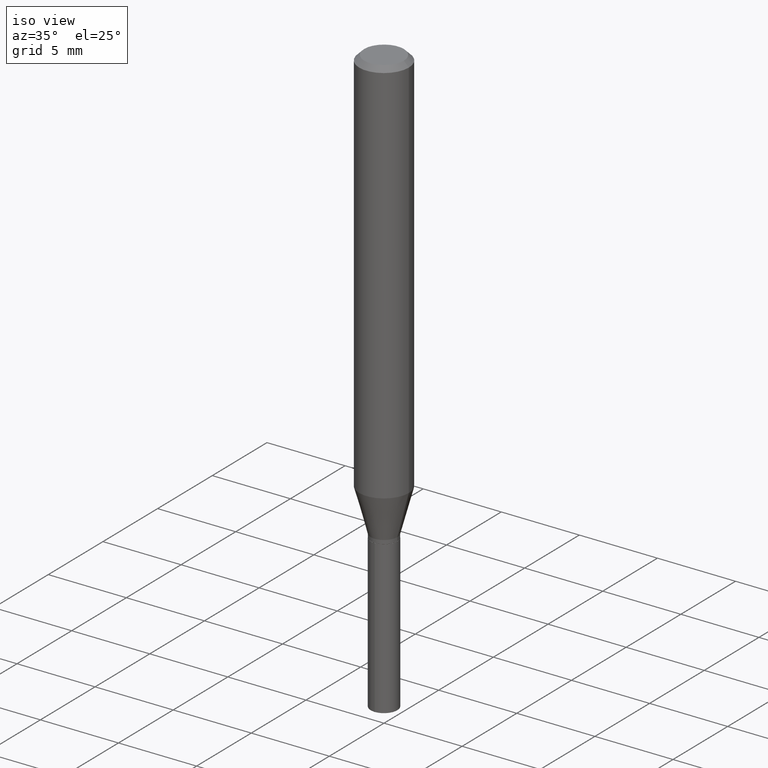
[diagram: clean part render]
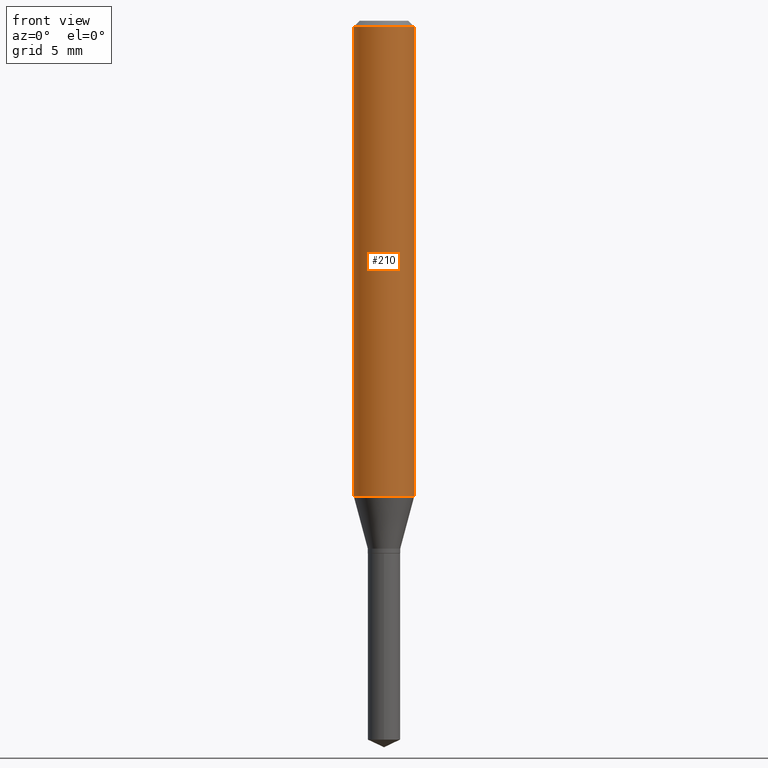
[diagram: tour spotlight — one face highlighted and labeled with its STEP entity id]
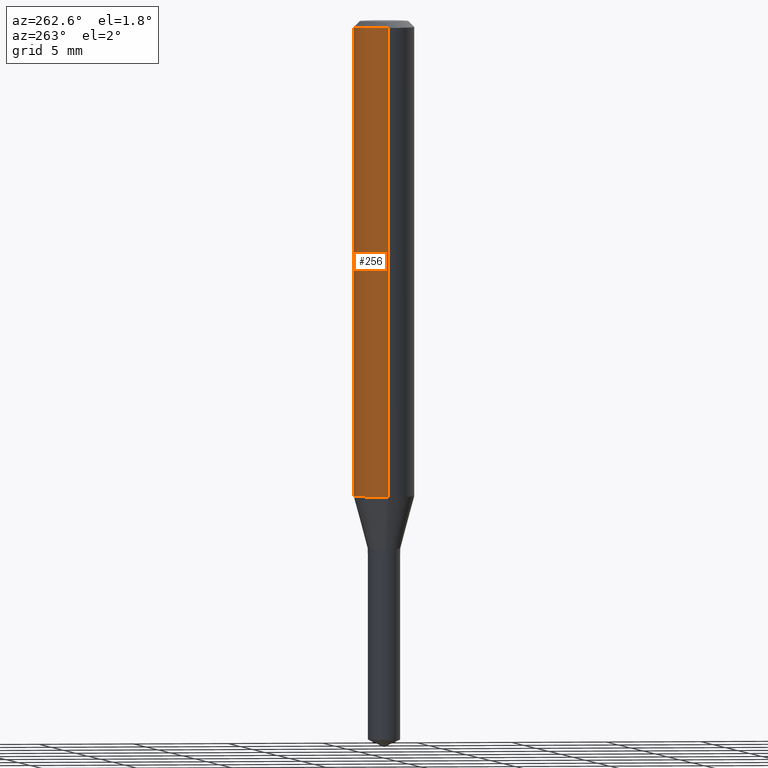
[diagram: tour spotlight — one face highlighted and labeled with its STEP entity id]
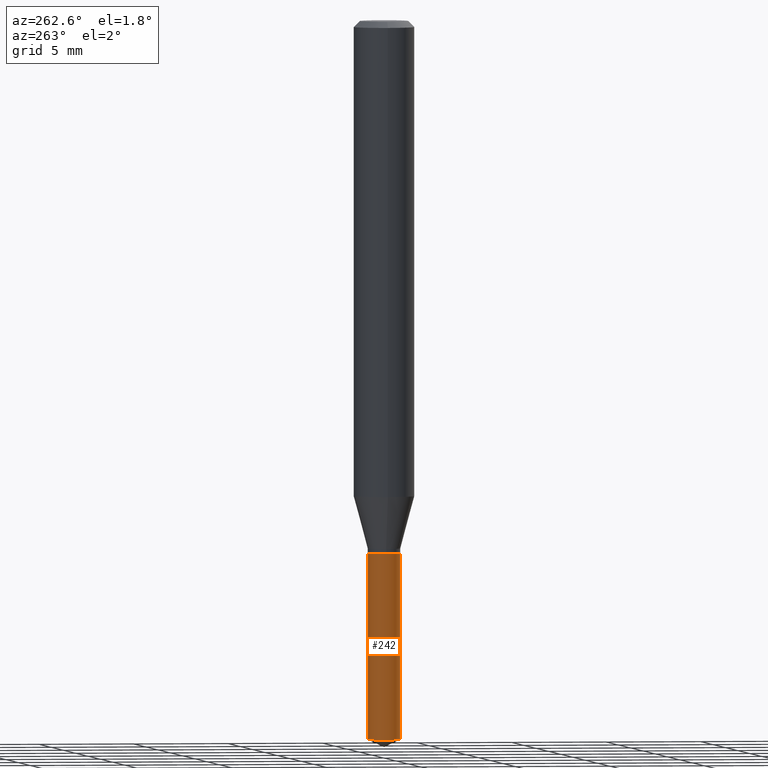
[diagram: tour spotlight — one face highlighted and labeled with its STEP entity id]
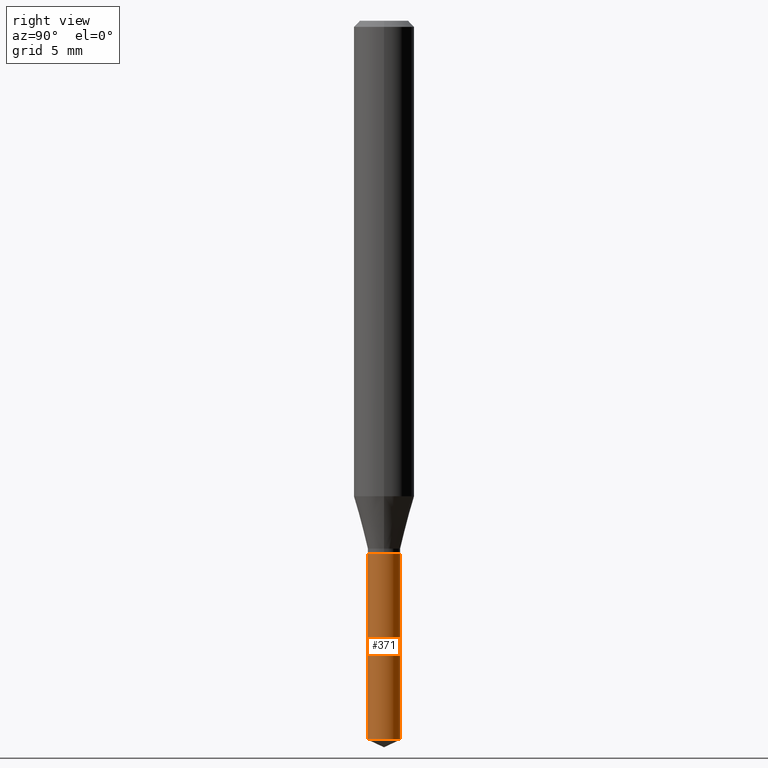
[diagram: tour spotlight — one face highlighted and labeled with its STEP entity id]
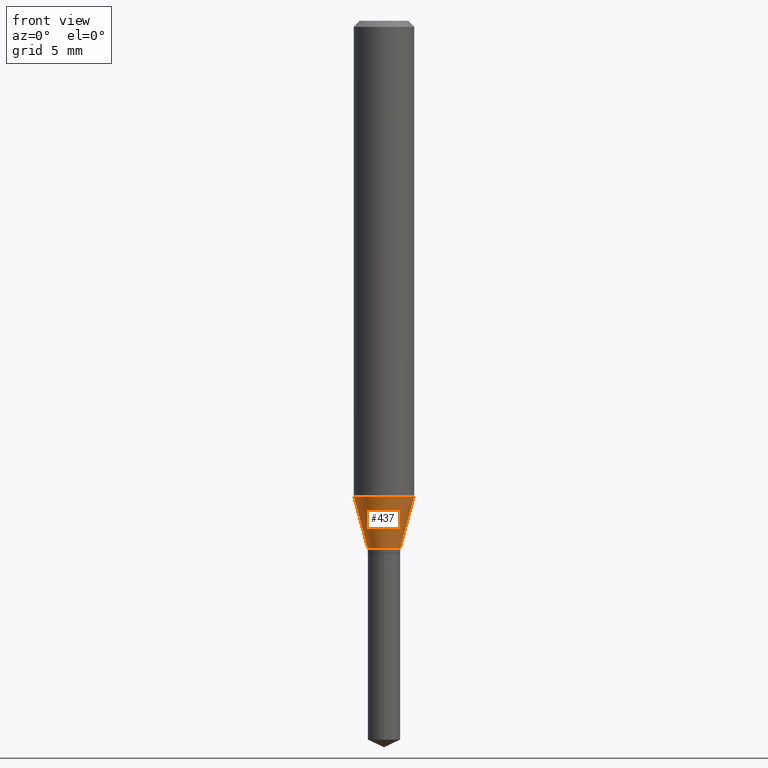
[diagram: tour spotlight — one face highlighted and labeled with its STEP entity id]
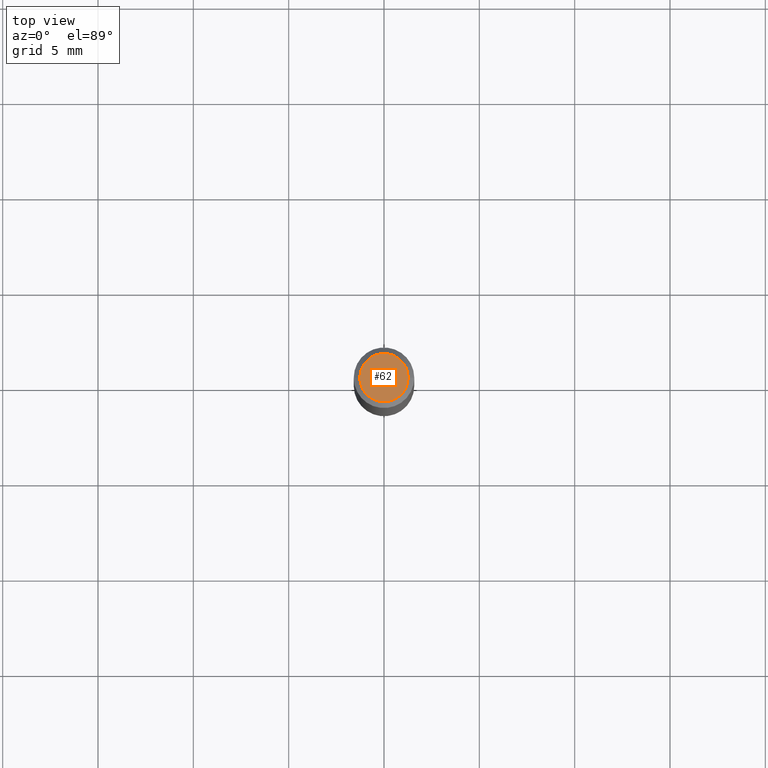
[diagram: tour spotlight — one face highlighted and labeled with its STEP entity id]
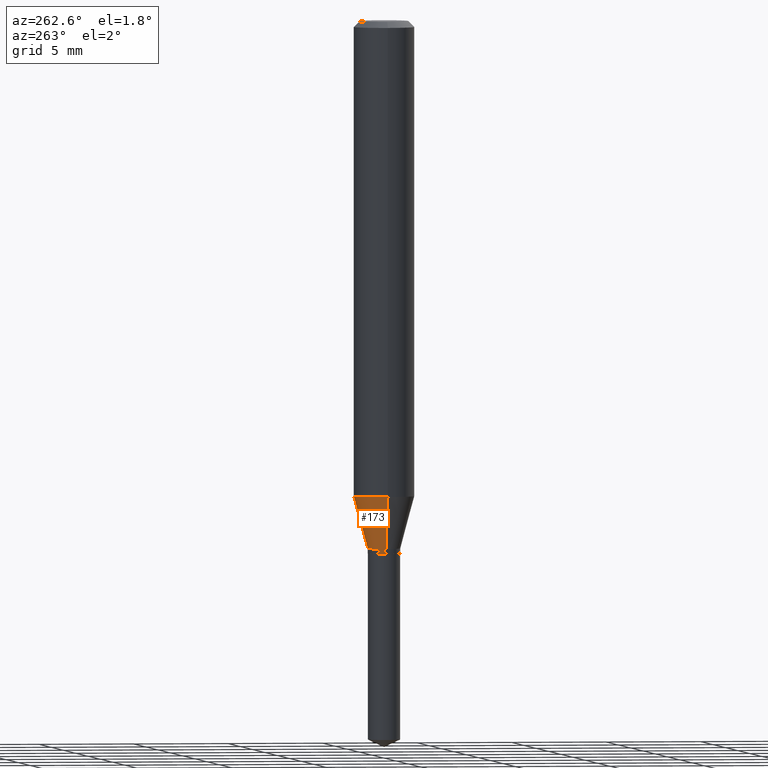
[diagram: tour spotlight — one face highlighted and labeled with its STEP entity id]
A machine part: a face-by-face anatomy tour. The part has 17 B-rep faces; the first image is the clean iso view, then the 7 largest visible faces are spotlighted one at a time (largest first), each with its STEP entity span.

Face 1 — front view, entity #210. In plain terms, the highlighted cylindrical surface (edge-blend (fillet) strip) has radius 1.5875 mm, axis along (-0, 0, 1).
Definition (entity closure, byte-faithful):
#4 = VERTEX_POINT ( 'NONE', #91 ) ;
#14 = AXIS2_PLACEMENT_3D ( 'NONE', #165, #271, #427 ) ;
#17 = CARTESIAN_POINT ( 'NONE',  ( 3.056836007731440977E-31, -4.364351673553961068E-17, -0.01250000000000008223 ) ) ;
#23 = VERTEX_POINT ( 'NONE', #307 ) ;
#42 = ORIENTED_EDGE ( 'NONE', *, *, #309, .T. ) ;
#74 = DIRECTION ( 'NONE',  ( 1.000000000000000000, -6.982962677686267499E-15, 4.876176775795936353E-29 ) ) ;
#83 = AXIS2_PLACEMENT_3D ( 'NONE', #17, #346, #208 ) ;
#91 = CARTESIAN_POINT ( 'NONE',  ( 0.06250000000000012490, -3.863919491803540319E-15, -0.9816705265805023561 ) ) ;
#102 = CYLINDRICAL_SURFACE ( 'NONE', #362, 0.06250000000000005551 ) ;
#104 = VECTOR ( 'NONE', #404, 39.37007874015748143 ) ;
#108 = DIRECTION ( 'NONE',  ( -2.445468806185136597E-29, 3.491481338843145583E-15, 1.000000000000000000 ) ) ;
#116 = ORIENTED_EDGE ( 'NONE', *, *, #118, .T. ) ;
#118 = EDGE_CURVE ( 'NONE', #480, #4, #144, .T. ) ;
#144 = CIRCLE ( 'NONE', #14, 0.06250000000000012490 ) ;
#165 = CARTESIAN_POINT ( 'NONE',  ( 2.400644650703955588E-29, -3.427484324448148255E-15, -0.9816705265805023561 ) ) ;
#184 = CARTESIAN_POINT ( 'NONE',  ( -0.06250000000000005551, 4.440892098500630106E-16, -3.074334431409318916E-30 ) ) ;
#204 = CARTESIAN_POINT ( 'NONE',  ( 0.06250000000000005551, -4.364351673553921131E-16, 3.047610484872463023E-30 ) ) ;
#208 = DIRECTION ( 'NONE',  ( 1.000000000000000000, -6.982962677686266711E-15, 0.000000000000000000 ) ) ;
#210 = ADVANCED_FACE ( 'NONE', ( #370 ), #102, .T. ) ;
#212 = VECTOR ( 'NONE', #351, 39.37007874015748143 ) ;
#213 = EDGE_CURVE ( 'NONE', #480, #218, #300, .T. ) ;
#218 = VERTEX_POINT ( 'NONE', #252 ) ;
#227 = ORIENTED_EDGE ( 'NONE', *, *, #213, .F. ) ;
#252 = CARTESIAN_POINT ( 'NONE',  ( -0.06250000000000000000, -1.291474710741780109E-15, -0.01250000000000008223 ) ) ;
#265 = EDGE_LOOP ( 'NONE', ( #227, #116, #42, #477 ) ) ;
#271 = DIRECTION ( 'NONE',  ( -2.445468806185136597E-29, 3.491481338843145583E-15, 1.000000000000000000 ) ) ;
#300 = LINE ( 'NONE', #184, #104 ) ;
#307 = CARTESIAN_POINT ( 'NONE',  ( 0.06250000000000000000, -4.800786840909312308E-16, -0.01250000000000008223 ) ) ;
#309 = EDGE_CURVE ( 'NONE', #4, #23, #342, .T. ) ;
#316 = EDGE_CURVE ( 'NONE', #218, #23, #385, .T. ) ;
#342 = LINE ( 'NONE', #204, #212 ) ;
#346 = DIRECTION ( 'NONE',  ( -2.445468806185136597E-29, 3.491481338843145583E-15, 1.000000000000000000 ) ) ;
#351 = DIRECTION ( 'NONE',  ( -2.445468806185136877E-29, 3.491481338843145188E-15, 1.000000000000000000 ) ) ;
#362 = AXIS2_PLACEMENT_3D ( 'NONE', #445, #108, #74 ) ;
#370 = FACE_OUTER_BOUND ( 'NONE', #265, .T. ) ;
#385 = CIRCLE ( 'NONE', #83, 0.06250000000000000000 ) ;
#404 = DIRECTION ( 'NONE',  ( -2.445468806185136877E-29, 3.491481338843145188E-15, 1.000000000000000000 ) ) ;
#427 = DIRECTION ( 'NONE',  ( 1.000000000000000000, -6.982962677686264344E-15, 0.000000000000000000 ) ) ;
#438 = CARTESIAN_POINT ( 'NONE',  ( -0.06250000000000012490, -2.983395114598084455E-15, -0.9816705265805023561 ) ) ;
#445 = CARTESIAN_POINT ( 'NONE',  ( 0.000000000000000000, 0.000000000000000000, 0.000000000000000000 ) ) ;
#477 = ORIENTED_EDGE ( 'NONE', *, *, #316, .F. ) ;
#480 = VERTEX_POINT ( 'NONE', #438 ) ;

Face 2 — auxiliary view, entity #256. In plain terms, the highlighted cylindrical surface (edge-blend (fillet) strip) has radius 1.5875 mm, axis along (-0, 0, 1).
Definition (entity closure, byte-faithful):
#4 = VERTEX_POINT ( 'NONE', #91 ) ;
#5 = ORIENTED_EDGE ( 'NONE', *, *, #309, .F. ) ;
#20 = AXIS2_PLACEMENT_3D ( 'NONE', #435, #49, #130 ) ;
#23 = VERTEX_POINT ( 'NONE', #307 ) ;
#49 = DIRECTION ( 'NONE',  ( -2.445468806185136597E-29, 3.491481338843145583E-15, 1.000000000000000000 ) ) ;
#91 = CARTESIAN_POINT ( 'NONE',  ( 0.06250000000000012490, -3.863919491803540319E-15, -0.9816705265805023561 ) ) ;
#94 = DIRECTION ( 'NONE',  ( 1.000000000000000000, -6.982962677686266711E-15, 0.000000000000000000 ) ) ;
#104 = VECTOR ( 'NONE', #404, 39.37007874015748143 ) ;
#130 = DIRECTION ( 'NONE',  ( 1.000000000000000000, -6.982962677686267499E-15, 4.876176775795936353E-29 ) ) ;
#148 = CARTESIAN_POINT ( 'NONE',  ( 2.400644650703955588E-29, -3.427484324448148255E-15, -0.9816705265805023561 ) ) ;
#172 = EDGE_LOOP ( 'NONE', ( #415, #478, #301, #5 ) ) ;
#183 = FACE_OUTER_BOUND ( 'NONE', #172, .T. ) ;
#184 = CARTESIAN_POINT ( 'NONE',  ( -0.06250000000000005551, 4.440892098500630106E-16, -3.074334431409318916E-30 ) ) ;
#187 = AXIS2_PLACEMENT_3D ( 'NONE', #148, #294, #482 ) ;
#201 = EDGE_CURVE ( 'NONE', #4, #480, #413, .T. ) ;
#204 = CARTESIAN_POINT ( 'NONE',  ( 0.06250000000000005551, -4.364351673553921131E-16, 3.047610484872463023E-30 ) ) ;
#212 = VECTOR ( 'NONE', #351, 39.37007874015748143 ) ;
#213 = EDGE_CURVE ( 'NONE', #480, #218, #300, .T. ) ;
#218 = VERTEX_POINT ( 'NONE', #252 ) ;
#244 = AXIS2_PLACEMENT_3D ( 'NONE', #304, #273, #94 ) ;
#252 = CARTESIAN_POINT ( 'NONE',  ( -0.06250000000000000000, -1.291474710741780109E-15, -0.01250000000000008223 ) ) ;
#256 = ADVANCED_FACE ( 'NONE', ( #183 ), #374, .T. ) ;
#273 = DIRECTION ( 'NONE',  ( -2.445468806185136597E-29, 3.491481338843145583E-15, 1.000000000000000000 ) ) ;
#294 = DIRECTION ( 'NONE',  ( -2.445468806185136597E-29, 3.491481338843145583E-15, 1.000000000000000000 ) ) ;
#300 = LINE ( 'NONE', #184, #104 ) ;
#301 = ORIENTED_EDGE ( 'NONE', *, *, #397, .F. ) ;
#304 = CARTESIAN_POINT ( 'NONE',  ( 3.056836007731440977E-31, -4.364351673553961068E-17, -0.01250000000000008223 ) ) ;
#307 = CARTESIAN_POINT ( 'NONE',  ( 0.06250000000000000000, -4.800786840909312308E-16, -0.01250000000000008223 ) ) ;
#309 = EDGE_CURVE ( 'NONE', #4, #23, #342, .T. ) ;
#342 = LINE ( 'NONE', #204, #212 ) ;
#351 = DIRECTION ( 'NONE',  ( -2.445468806185136877E-29, 3.491481338843145188E-15, 1.000000000000000000 ) ) ;
#374 = CYLINDRICAL_SURFACE ( 'NONE', #20, 0.06250000000000005551 ) ;
#397 = EDGE_CURVE ( 'NONE', #23, #218, #414, .T. ) ;
#404 = DIRECTION ( 'NONE',  ( -2.445468806185136877E-29, 3.491481338843145188E-15, 1.000000000000000000 ) ) ;
#413 = CIRCLE ( 'NONE', #187, 0.06250000000000012490 ) ;
#414 = CIRCLE ( 'NONE', #244, 0.06250000000000000000 ) ;
#415 = ORIENTED_EDGE ( 'NONE', *, *, #201, .T. ) ;
#435 = CARTESIAN_POINT ( 'NONE',  ( 0.000000000000000000, 0.000000000000000000, 0.000000000000000000 ) ) ;
#438 = CARTESIAN_POINT ( 'NONE',  ( -0.06250000000000012490, -2.983395114598084455E-15, -0.9816705265805023561 ) ) ;
#478 = ORIENTED_EDGE ( 'NONE', *, *, #213, .T. ) ;
#480 = VERTEX_POINT ( 'NONE', #438 ) ;
#482 = DIRECTION ( 'NONE',  ( 1.000000000000000000, -6.982962677686264344E-15, 0.000000000000000000 ) ) ;

Face 3 — auxiliary view, entity #242. In plain terms, the highlighted cylindrical surface (edge-blend (fillet) strip) has radius 0.8509 mm, axis along (-0, 0, 1).
Definition (entity closure, byte-faithful):
#18 = CARTESIAN_POINT ( 'NONE',  ( 2.380318164796604470E-16, 0.03349999999999615785, -1.100000000000000089 ) ) ;
#52 = DIRECTION ( 'NONE',  ( -2.445399690415121530E-29, 3.491580316559632610E-15, 1.000000000000000000 ) ) ;
#66 = DIRECTION ( 'NONE',  ( -2.445399690415121810E-29, 3.491580316559632610E-15, 1.000000000000000000 ) ) ;
#76 = CYLINDRICAL_SURFACE ( 'NONE', #153, 0.03350000000000000200 ) ;
#98 = EDGE_CURVE ( 'NONE', #224, #122, #357, .T. ) ;
#122 = VERTEX_POINT ( 'NONE', #388 ) ;
#126 = AXIS2_PLACEMENT_3D ( 'NONE', #386, #52, #382 ) ;
#133 = CARTESIAN_POINT ( 'NONE',  ( -2.339292497024630386E-16, -0.03350000000000384615, -1.099999999999999867 ) ) ;
#140 = DIRECTION ( 'NONE',  ( -6.982962677686266711E-15, -1.000000000000000000, 0.000000000000000000 ) ) ;
#153 = AXIS2_PLACEMENT_3D ( 'NONE', #180, #446, #194 ) ;
#158 = ORIENTED_EDGE ( 'NONE', *, *, #220, .T. ) ;
#170 = DIRECTION ( 'NONE',  ( -2.445399690415121810E-29, 3.491580316559632610E-15, 1.000000000000000000 ) ) ;
#176 = CIRCLE ( 'NONE', #230, 0.03350000000000000200 ) ;
#180 = CARTESIAN_POINT ( 'NONE',  ( 2.690015686803650369E-29, -3.840629472727460101E-15, -1.100000000000000089 ) ) ;
#194 = DIRECTION ( 'NONE',  ( -6.982962677686266711E-15, -1.000000000000000000, 4.077385065170542141E-15 ) ) ;
#197 = ORIENTED_EDGE ( 'NONE', *, *, #449, .F. ) ;
#214 = FACE_OUTER_BOUND ( 'NONE', #282, .T. ) ;
#216 = CARTESIAN_POINT ( 'NONE',  ( 2.380318164796699134E-16, 0.03349999999999615785, -1.100000000000000089 ) ) ;
#217 = VECTOR ( 'NONE', #66, 39.37007874015748143 ) ;
#220 = EDGE_CURVE ( 'NONE', #465, #259, #176, .T. ) ;
#224 = VERTEX_POINT ( 'NONE', #216 ) ;
#230 = AXIS2_PLACEMENT_3D ( 'NONE', #409, #329, #140 ) ;
#242 = ADVANCED_FACE ( 'NONE', ( #214 ), #76, .T. ) ;
#250 = LINE ( 'NONE', #133, #217 ) ;
#259 = VERTEX_POINT ( 'NONE', #419 ) ;
#261 = ORIENTED_EDGE ( 'NONE', *, *, #98, .F. ) ;
#282 = EDGE_LOOP ( 'NONE', ( #197, #158, #429, #261 ) ) ;
#329 = DIRECTION ( 'NONE',  ( -2.445399690415121530E-29, 3.491580316559632610E-15, 1.000000000000000000 ) ) ;
#357 = CIRCLE ( 'NONE', #126, 0.03350000000000000200 ) ;
#360 = CARTESIAN_POINT ( 'NONE',  ( 2.380318164796698641E-16, 0.03349999999999481864, -1.484378693451807507 ) ) ;
#382 = DIRECTION ( 'NONE',  ( -6.982962677686266711E-15, -1.000000000000000000, 4.077385065170542141E-15 ) ) ;
#386 = CARTESIAN_POINT ( 'NONE',  ( 2.690015686803650369E-29, -3.840629472727460101E-15, -1.100000000000000089 ) ) ;
#388 = CARTESIAN_POINT ( 'NONE',  ( -2.339292497024630386E-16, -0.03350000000000384615, -1.099999999999999867 ) ) ;
#400 = VECTOR ( 'NONE', #170, 39.37007874015748143 ) ;
#409 = CARTESIAN_POINT ( 'NONE',  ( 3.629975224772868872E-29, -5.182718552888700756E-15, -1.484378693451807507 ) ) ;
#419 = CARTESIAN_POINT ( 'NONE',  ( -2.339292497024536216E-16, -0.03350000000000518535, -1.484378693451807507 ) ) ;
#429 = ORIENTED_EDGE ( 'NONE', *, *, #484, .T. ) ;
#446 = DIRECTION ( 'NONE',  ( -2.445399690415121530E-29, 3.491580316559632610E-15, 1.000000000000000000 ) ) ;
#449 = EDGE_CURVE ( 'NONE', #465, #224, #481, .T. ) ;
#465 = VERTEX_POINT ( 'NONE', #360 ) ;
#481 = LINE ( 'NONE', #18, #400 ) ;
#484 = EDGE_CURVE ( 'NONE', #259, #122, #250, .T. ) ;

Face 4 — right view, entity #371. In plain terms, the highlighted cylindrical surface (edge-blend (fillet) strip) has radius 0.8509 mm, axis along (-0, 0, 1).
Definition (entity closure, byte-faithful):
#7 = CARTESIAN_POINT ( 'NONE',  ( 2.690015686803650369E-29, -3.840629472727460101E-15, -1.100000000000000089 ) ) ;
#8 = ORIENTED_EDGE ( 'NONE', *, *, #449, .T. ) ;
#9 = CARTESIAN_POINT ( 'NONE',  ( 3.629975224772868872E-29, -5.182718552888700756E-15, -1.484378693451807507 ) ) ;
#10 = EDGE_LOOP ( 'NONE', ( #93, #8, #191, #416 ) ) ;
#18 = CARTESIAN_POINT ( 'NONE',  ( 2.380318164796604470E-16, 0.03349999999999615785, -1.100000000000000089 ) ) ;
#30 = CIRCLE ( 'NONE', #444, 0.03350000000000000200 ) ;
#45 = FACE_OUTER_BOUND ( 'NONE', #10, .T. ) ;
#61 = DIRECTION ( 'NONE',  ( -2.445399690415121530E-29, 3.491580316559632610E-15, 1.000000000000000000 ) ) ;
#65 = AXIS2_PLACEMENT_3D ( 'NONE', #215, #61, #401 ) ;
#66 = DIRECTION ( 'NONE',  ( -2.445399690415121810E-29, 3.491580316559632610E-15, 1.000000000000000000 ) ) ;
#93 = ORIENTED_EDGE ( 'NONE', *, *, #349, .T. ) ;
#122 = VERTEX_POINT ( 'NONE', #388 ) ;
#127 = CYLINDRICAL_SURFACE ( 'NONE', #344, 0.03350000000000000200 ) ;
#133 = CARTESIAN_POINT ( 'NONE',  ( -2.339292497024630386E-16, -0.03350000000000384615, -1.099999999999999867 ) ) ;
#170 = DIRECTION ( 'NONE',  ( -2.445399690415121810E-29, 3.491580316559632610E-15, 1.000000000000000000 ) ) ;
#191 = ORIENTED_EDGE ( 'NONE', *, *, #479, .F. ) ;
#215 = CARTESIAN_POINT ( 'NONE',  ( 2.690015686803650369E-29, -3.840629472727460101E-15, -1.100000000000000089 ) ) ;
#216 = CARTESIAN_POINT ( 'NONE',  ( 2.380318164796699134E-16, 0.03349999999999615785, -1.100000000000000089 ) ) ;
#217 = VECTOR ( 'NONE', #66, 39.37007874015748143 ) ;
#224 = VERTEX_POINT ( 'NONE', #216 ) ;
#233 = DIRECTION ( 'NONE',  ( -6.982962677686266711E-15, -1.000000000000000000, 4.077385065170542141E-15 ) ) ;
#250 = LINE ( 'NONE', #133, #217 ) ;
#259 = VERTEX_POINT ( 'NONE', #419 ) ;
#278 = DIRECTION ( 'NONE',  ( -2.445399690415121530E-29, 3.491580316559632610E-15, 1.000000000000000000 ) ) ;
#312 = DIRECTION ( 'NONE',  ( -2.445399690415121530E-29, 3.491580316559632610E-15, 1.000000000000000000 ) ) ;
#327 = CIRCLE ( 'NONE', #65, 0.03350000000000000200 ) ;
#344 = AXIS2_PLACEMENT_3D ( 'NONE', #7, #312, #233 ) ;
#349 = EDGE_CURVE ( 'NONE', #259, #465, #30, .T. ) ;
#360 = CARTESIAN_POINT ( 'NONE',  ( 2.380318164796698641E-16, 0.03349999999999481864, -1.484378693451807507 ) ) ;
#371 = ADVANCED_FACE ( 'NONE', ( #45 ), #127, .T. ) ;
#388 = CARTESIAN_POINT ( 'NONE',  ( -2.339292497024630386E-16, -0.03350000000000384615, -1.099999999999999867 ) ) ;
#400 = VECTOR ( 'NONE', #170, 39.37007874015748143 ) ;
#401 = DIRECTION ( 'NONE',  ( -6.982962677686266711E-15, -1.000000000000000000, 4.077385065170542141E-15 ) ) ;
#416 = ORIENTED_EDGE ( 'NONE', *, *, #484, .F. ) ;
#419 = CARTESIAN_POINT ( 'NONE',  ( -2.339292497024536216E-16, -0.03350000000000518535, -1.484378693451807507 ) ) ;
#428 = DIRECTION ( 'NONE',  ( -6.982962677686266711E-15, -1.000000000000000000, 0.000000000000000000 ) ) ;
#444 = AXIS2_PLACEMENT_3D ( 'NONE', #9, #278, #428 ) ;
#449 = EDGE_CURVE ( 'NONE', #465, #224, #481, .T. ) ;
#465 = VERTEX_POINT ( 'NONE', #360 ) ;
#479 = EDGE_CURVE ( 'NONE', #122, #224, #327, .T. ) ;
#481 = LINE ( 'NONE', #18, #400 ) ;
#484 = EDGE_CURVE ( 'NONE', #259, #122, #250, .T. ) ;

Face 5 — front view, entity #437. In plain terms, the highlighted conical surface has half-angle 15 deg.
Definition (entity closure, byte-faithful):
#4 = VERTEX_POINT ( 'NONE', #91 ) ;
#14 = AXIS2_PLACEMENT_3D ( 'NONE', #165, #271, #427 ) ;
#40 = CARTESIAN_POINT ( 'NONE',  ( -0.03350000000000000200, -3.567333694725510772E-15, -1.089900000000000091 ) ) ;
#46 = VERTEX_POINT ( 'NONE', #463 ) ;
#56 = EDGE_CURVE ( 'NONE', #46, #195, #64, .T. ) ;
#57 = ORIENTED_EDGE ( 'NONE', *, *, #161, .F. ) ;
#64 = CIRCLE ( 'NONE', #489, 0.03350000000000000200 ) ;
#84 = ORIENTED_EDGE ( 'NONE', *, *, #136, .T. ) ;
#91 = CARTESIAN_POINT ( 'NONE',  ( 0.06250000000000012490, -3.863919491803540319E-15, -0.9816705265805023561 ) ) ;
#95 = CARTESIAN_POINT ( 'NONE',  ( 2.665316451861180599E-29, -3.805365511205144152E-15, -1.089900000000000091 ) ) ;
#112 = LINE ( 'NONE', #40, #476 ) ;
#118 = EDGE_CURVE ( 'NONE', #480, #4, #144, .T. ) ;
#119 = ORIENTED_EDGE ( 'NONE', *, *, #56, .T. ) ;
#123 = DIRECTION ( 'NONE',  ( 1.000000000000000000, -6.982962677686259611E-15, 0.000000000000000000 ) ) ;
#129 = CARTESIAN_POINT ( 'NONE',  ( 0.03350000000000000200, -4.039294760907634307E-15, -1.089900000000000091 ) ) ;
#131 = DIRECTION ( 'NONE',  ( -2.445468806185136597E-29, 3.491481338843145583E-15, 1.000000000000000000 ) ) ;
#134 = CONICAL_SURFACE ( 'NONE', #154, 0.03350000000000000200, 0.2617993877991499074 ) ;
#136 = EDGE_CURVE ( 'NONE', #195, #4, #205, .T. ) ;
#137 = VECTOR ( 'NONE', #274, 39.37007874015748854 ) ;
#144 = CIRCLE ( 'NONE', #14, 0.06250000000000012490 ) ;
#154 = AXIS2_PLACEMENT_3D ( 'NONE', #95, #396, #245 ) ;
#161 = EDGE_CURVE ( 'NONE', #46, #480, #112, .T. ) ;
#165 = CARTESIAN_POINT ( 'NONE',  ( 2.400644650703955588E-29, -3.427484324448148255E-15, -0.9816705265805023561 ) ) ;
#195 = VERTEX_POINT ( 'NONE', #366 ) ;
#205 = LINE ( 'NONE', #129, #137 ) ;
#234 = CARTESIAN_POINT ( 'NONE',  ( 2.665316451861180599E-29, -3.805365511205144152E-15, -1.089900000000000091 ) ) ;
#245 = DIRECTION ( 'NONE',  ( 1.000000000000000000, -6.982962677686259611E-15, 0.000000000000000000 ) ) ;
#271 = DIRECTION ( 'NONE',  ( -2.445468806185136597E-29, 3.491481338843145583E-15, 1.000000000000000000 ) ) ;
#274 = DIRECTION ( 'NONE',  ( 0.2588190451025211836, 1.565188264969622559E-15, 0.9659258262890679791 ) ) ;
#275 = FACE_OUTER_BOUND ( 'NONE', #305, .T. ) ;
#305 = EDGE_LOOP ( 'NONE', ( #57, #119, #84, #447 ) ) ;
#363 = DIRECTION ( 'NONE',  ( -0.2588190451025211836, 5.211531920934547886E-15, 0.9659258262890679791 ) ) ;
#366 = CARTESIAN_POINT ( 'NONE',  ( 0.03350000000000000200, -4.039294760907634307E-15, -1.089900000000000091 ) ) ;
#396 = DIRECTION ( 'NONE',  ( -2.445468806185136597E-29, 3.491481338843145583E-15, 1.000000000000000000 ) ) ;
#427 = DIRECTION ( 'NONE',  ( 1.000000000000000000, -6.982962677686264344E-15, 0.000000000000000000 ) ) ;
#437 = ADVANCED_FACE ( 'NONE', ( #275 ), #134, .T. ) ;
#438 = CARTESIAN_POINT ( 'NONE',  ( -0.06250000000000012490, -2.983395114598084455E-15, -0.9816705265805023561 ) ) ;
#447 = ORIENTED_EDGE ( 'NONE', *, *, #118, .F. ) ;
#463 = CARTESIAN_POINT ( 'NONE',  ( -0.03350000000000000200, -3.584092805151957996E-15, -1.089900000000000091 ) ) ;
#476 = VECTOR ( 'NONE', #363, 39.37007874015748854 ) ;
#480 = VERTEX_POINT ( 'NONE', #438 ) ;
#489 = AXIS2_PLACEMENT_3D ( 'NONE', #234, #131, #123 ) ;

Face 6 — top view, entity #62. In plain terms, the highlighted planar face has unit normal (0, -0, -1).
Definition (entity closure, byte-faithful):
#44 = ORIENTED_EDGE ( 'NONE', *, *, #48, .T. ) ;
#48 = EDGE_CURVE ( 'NONE', #380, #296, #99, .T. ) ;
#53 = CARTESIAN_POINT ( 'NONE',  ( -0.04999999999999999584, 3.709698922520826725E-16, -1.592040838894077649E-18 ) ) ;
#62 = ADVANCED_FACE ( 'NONE', ( #267 ), #422, .F. ) ;
#71 = DIRECTION ( 'NONE',  ( 1.000000000000000000, -6.982962677686265922E-15, 4.875957971899673662E-29 ) ) ;
#87 = CARTESIAN_POINT ( 'NONE',  ( 1.946643104841063088E-47, -2.779290439833033990E-33, -7.960204194457798443E-19 ) ) ;
#99 = CIRCLE ( 'NONE', #433, 0.04999999999999999584 ) ;
#155 = DIRECTION ( 'NONE',  ( -1.000000000000000000, 6.982962677686265922E-15, -4.876176775795935793E-29 ) ) ;
#166 = AXIS2_PLACEMENT_3D ( 'NONE', #87, #232, #155 ) ;
#232 = DIRECTION ( 'NONE',  ( 2.438088387897960049E-29, -3.491481338843145188E-15, -1.000000000000000000 ) ) ;
#267 = FACE_OUTER_BOUND ( 'NONE', #335, .T. ) ;
#290 = CARTESIAN_POINT ( 'NONE',  ( 3.893286209682126177E-47, -5.558580879666067980E-33, -1.592040838891559689E-18 ) ) ;
#296 = VERTEX_POINT ( 'NONE', #464 ) ;
#326 = DIRECTION ( 'NONE',  ( -2.445468806185136597E-29, 3.491481338843145583E-15, 1.000000000000000000 ) ) ;
#333 = CIRCLE ( 'NONE', #439, 0.04999999999999999584 ) ;
#335 = EDGE_LOOP ( 'NONE', ( #44, #450 ) ) ;
#350 = CARTESIAN_POINT ( 'NONE',  ( 3.893286209682126177E-47, -5.558580879666067980E-33, -1.592040838891559689E-18 ) ) ;
#380 = VERTEX_POINT ( 'NONE', #53 ) ;
#418 = DIRECTION ( 'NONE',  ( -2.445468806185136597E-29, 3.491481338843145583E-15, 1.000000000000000000 ) ) ;
#422 = PLANE ( 'NONE',  #166 ) ;
#433 = AXIS2_PLACEMENT_3D ( 'NONE', #350, #418, #467 ) ;
#439 = AXIS2_PLACEMENT_3D ( 'NONE', #290, #326, #71 ) ;
#450 = ORIENTED_EDGE ( 'NONE', *, *, #486, .T. ) ;
#464 = CARTESIAN_POINT ( 'NONE',  ( 0.04999999999999999584, -4.077247707424184212E-16, -1.592040838888913461E-18 ) ) ;
#467 = DIRECTION ( 'NONE',  ( 1.000000000000000000, -6.982962677686265922E-15, 4.875957971899673662E-29 ) ) ;
#486 = EDGE_CURVE ( 'NONE', #296, #380, #333, .T. ) ;

Face 7 — auxiliary view, entity #173. In plain terms, the highlighted conical surface has half-angle 15 deg.
Definition (entity closure, byte-faithful):
#2 = EDGE_CURVE ( 'NONE', #195, #46, #313, .T. ) ;
#4 = VERTEX_POINT ( 'NONE', #91 ) ;
#12 = CARTESIAN_POINT ( 'NONE',  ( 2.665316451861180599E-29, -3.805365511205144152E-15, -1.089900000000000091 ) ) ;
#40 = CARTESIAN_POINT ( 'NONE',  ( -0.03350000000000000200, -3.567333694725510772E-15, -1.089900000000000091 ) ) ;
#46 = VERTEX_POINT ( 'NONE', #463 ) ;
#67 = DIRECTION ( 'NONE',  ( -2.445468806185136597E-29, 3.491481338843145583E-15, 1.000000000000000000 ) ) ;
#80 = DIRECTION ( 'NONE',  ( 1.000000000000000000, -6.982962677686259611E-15, 0.000000000000000000 ) ) ;
#82 = CONICAL_SURFACE ( 'NONE', #384, 0.03350000000000000200, 0.2617993877991499074 ) ;
#91 = CARTESIAN_POINT ( 'NONE',  ( 0.06250000000000012490, -3.863919491803540319E-15, -0.9816705265805023561 ) ) ;
#112 = LINE ( 'NONE', #40, #476 ) ;
#113 = ORIENTED_EDGE ( 'NONE', *, *, #2, .T. ) ;
#129 = CARTESIAN_POINT ( 'NONE',  ( 0.03350000000000000200, -4.039294760907634307E-15, -1.089900000000000091 ) ) ;
#136 = EDGE_CURVE ( 'NONE', #195, #4, #205, .T. ) ;
#137 = VECTOR ( 'NONE', #274, 39.37007874015748854 ) ;
#148 = CARTESIAN_POINT ( 'NONE',  ( 2.400644650703955588E-29, -3.427484324448148255E-15, -0.9816705265805023561 ) ) ;
#161 = EDGE_CURVE ( 'NONE', #46, #480, #112, .T. ) ;
#173 = ADVANCED_FACE ( 'NONE', ( #440 ), #82, .T. ) ;
#182 = EDGE_LOOP ( 'NONE', ( #113, #185, #277, #253 ) ) ;
#185 = ORIENTED_EDGE ( 'NONE', *, *, #161, .T. ) ;
#187 = AXIS2_PLACEMENT_3D ( 'NONE', #148, #294, #482 ) ;
#190 = CARTESIAN_POINT ( 'NONE',  ( 2.665316451861180599E-29, -3.805365511205144152E-15, -1.089900000000000091 ) ) ;
#195 = VERTEX_POINT ( 'NONE', #366 ) ;
#199 = DIRECTION ( 'NONE',  ( 1.000000000000000000, -6.982962677686259611E-15, 0.000000000000000000 ) ) ;
#201 = EDGE_CURVE ( 'NONE', #4, #480, #413, .T. ) ;
#205 = LINE ( 'NONE', #129, #137 ) ;
#207 = DIRECTION ( 'NONE',  ( -2.445468806185136597E-29, 3.491481338843145583E-15, 1.000000000000000000 ) ) ;
#253 = ORIENTED_EDGE ( 'NONE', *, *, #136, .F. ) ;
#274 = DIRECTION ( 'NONE',  ( 0.2588190451025211836, 1.565188264969622559E-15, 0.9659258262890679791 ) ) ;
#277 = ORIENTED_EDGE ( 'NONE', *, *, #201, .F. ) ;
#294 = DIRECTION ( 'NONE',  ( -2.445468806185136597E-29, 3.491481338843145583E-15, 1.000000000000000000 ) ) ;
#313 = CIRCLE ( 'NONE', #469, 0.03350000000000000200 ) ;
#363 = DIRECTION ( 'NONE',  ( -0.2588190451025211836, 5.211531920934547886E-15, 0.9659258262890679791 ) ) ;
#366 = CARTESIAN_POINT ( 'NONE',  ( 0.03350000000000000200, -4.039294760907634307E-15, -1.089900000000000091 ) ) ;
#384 = AXIS2_PLACEMENT_3D ( 'NONE', #190, #67, #80 ) ;
#413 = CIRCLE ( 'NONE', #187, 0.06250000000000012490 ) ;
#438 = CARTESIAN_POINT ( 'NONE',  ( -0.06250000000000012490, -2.983395114598084455E-15, -0.9816705265805023561 ) ) ;
#440 = FACE_OUTER_BOUND ( 'NONE', #182, .T. ) ;
#463 = CARTESIAN_POINT ( 'NONE',  ( -0.03350000000000000200, -3.584092805151957996E-15, -1.089900000000000091 ) ) ;
#469 = AXIS2_PLACEMENT_3D ( 'NONE', #12, #207, #199 ) ;
#476 = VECTOR ( 'NONE', #363, 39.37007874015748854 ) ;
#480 = VERTEX_POINT ( 'NONE', #438 ) ;
#482 = DIRECTION ( 'NONE',  ( 1.000000000000000000, -6.982962677686264344E-15, 0.000000000000000000 ) ) ;